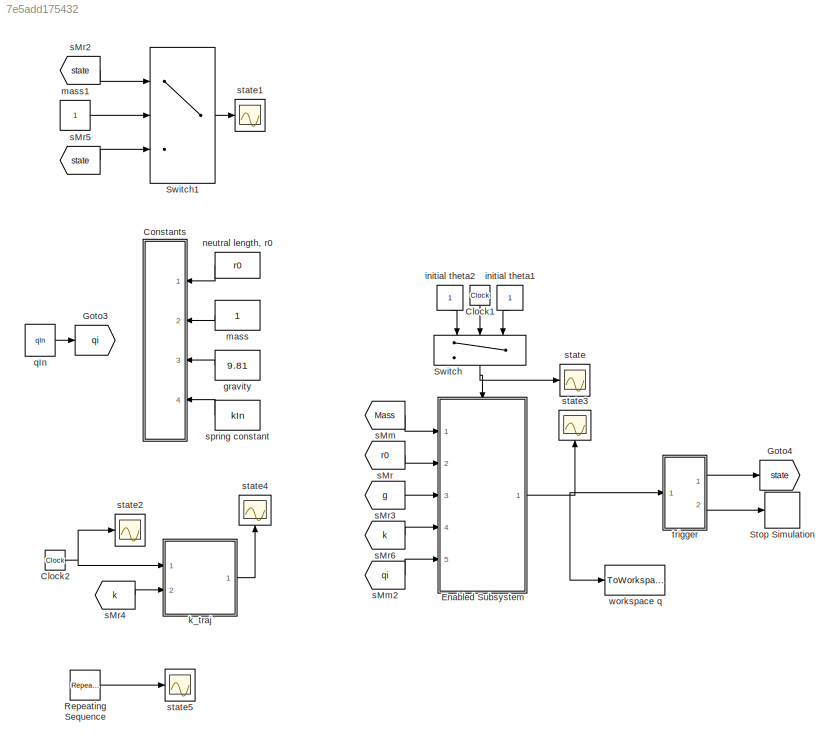
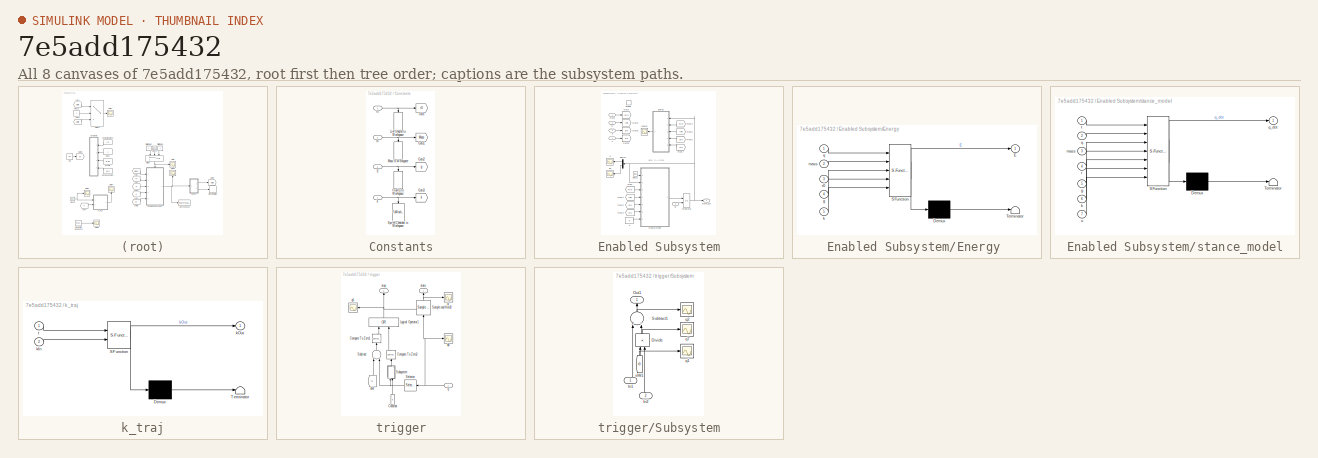
[diagram: thumbnail index - all 8 canvases of the model, root first then tree order]
MODEL slx_7e5add175432
KIND model
CONFIG AbsTol = auto
CONFIG FixedStep = 0.001
CONFIG MaxStep = auto
CONFIG MinStep = auto
CONFIG RelTol = 1e-6
CONFIG SampleTimeConstraint = Unconstrained
CONFIG Solver = ode45
CONFIG SolverMode = Auto
CONFIG SolverName = ode45
CONFIG StartTime = 0.0
CONFIG StopTime = 2
BLOCK [Clock] Clock1
BLOCK [Clock] Clock2
  Commented = on
BLOCK [SubSystem] Constants
  Ports = [4]
  RequestExecContextInheritance = off
BLOCK [Goto] Constants/Goto
  GotoTag = r0
  TagVisibility = global
BLOCK [Goto] Constants/Goto1
  GotoTag = Mass
  TagVisibility = global
BLOCK [Goto] Constants/Goto2
  GotoTag = g
  TagVisibility = global
BLOCK [Goto] Constants/Goto3
  GotoTag = k
  TagVisibility = global
BLOCK [ToWorkspace] Constants/Gravity to Workspace
  MaxDataPoints = 1
  Ports = [1]
  SampleTime = -1
  VariableName = g
BLOCK [ToWorkspace] Constants/Link lengths to Workspace
  MaxDataPoints = 1
  Ports = [1]
  SampleTime = -1
  VariableName = r
BLOCK [ToWorkspace] Constants/Mass to Workspace
  MaxDataPoints = 1
  Ports = [1]
  SampleTime = -1
  VariableName = m
BLOCK [ToWorkspace] Constants/Spring Constant to Workspace
  MaxDataPoints = 1
  Ports = [1]
  SampleTime = -1
  VariableName = k_spring
BLOCK [Inport] Constants/g
  IconDisplay = Port number
  Port = 3
BLOCK [Inport] Constants/k
  IconDisplay = Port number
  Port = 4
BLOCK [Inport] Constants/m
  IconDisplay = Port number
  Port = 2
BLOCK [Inport] Constants/r0
  IconDisplay = Port number
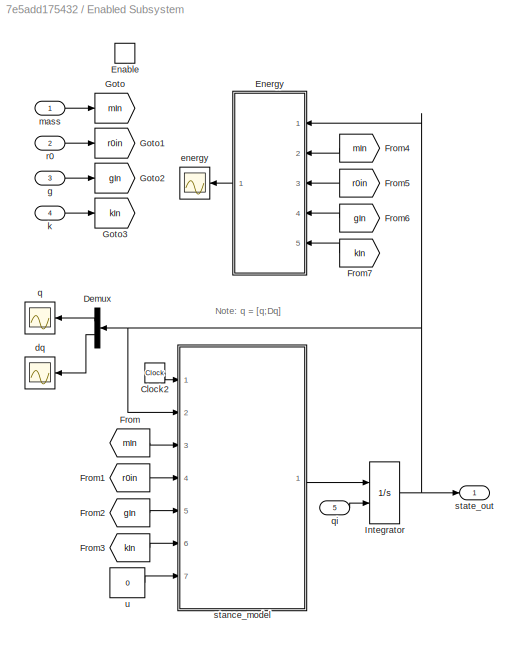
BLOCK [SubSystem] Enabled Subsystem
  Ports = [5, 1, 1]
  RequestExecContextInheritance = off
  TreatAsAtomicUnit = on
BLOCK [Clock] Enabled Subsystem/Clock2
BLOCK [Demux] Enabled Subsystem/Demux
  DisplayOption = bar
  Outputs = 2
  Ports = [1, 2]
BLOCK [EnablePort] Enabled Subsystem/Enable
  Ports = []
BLOCK [SubSystem] Enabled Subsystem/Energy 
  ErrorFcn = Stateflow.Translate.translate
  PermitHierarchicalResolution = ExplicitOnly
  Ports = [5, 1]
  RequestExecContextInheritance = off
  SFBlockType = MATLAB Function
  TreatAsAtomicUnit = on
BLOCK [Demux] Enabled Subsystem/Energy / Demux 
  Outputs = 1
  Ports = [1, 1]
BLOCK [S-Function] Enabled Subsystem/Energy / SFunction 
  EnableBusSupport = on
  FunctionName = sf_sfun
  PortCounts = [5 2]
  Ports = [5, 2]
  Tag = Stateflow S-Function simSLIPModel 1
BLOCK [Terminator] Enabled Subsystem/Energy / Terminator 
BLOCK [Outport] Enabled Subsystem/Energy /E
  IconDisplay = Port number
BLOCK [Inport] Enabled Subsystem/Energy /g
  IconDisplay = Port number
  Port = 4
BLOCK [Inport] Enabled Subsystem/Energy /k
  IconDisplay = Port number
  Port = 5
BLOCK [Inport] Enabled Subsystem/Energy /mass
  IconDisplay = Port number
  Port = 2
BLOCK [Inport] Enabled Subsystem/Energy /q
  IconDisplay = Port number
BLOCK [Inport] Enabled Subsystem/Energy /r0
  IconDisplay = Port number
  Port = 3
BLOCK [From] Enabled Subsystem/From
  GotoTag = mIn
BLOCK [From] Enabled Subsystem/From1
  GotoTag = r0in
BLOCK [From] Enabled Subsystem/From2
  GotoTag = gIn
BLOCK [From] Enabled Subsystem/From3
  GotoTag = kIn
BLOCK [From] Enabled Subsystem/From4
  GotoTag = mIn
BLOCK [From] Enabled Subsystem/From5
  GotoTag = r0in
BLOCK [From] Enabled Subsystem/From6
  GotoTag = gIn
BLOCK [From] Enabled Subsystem/From7
  GotoTag = kIn
BLOCK [Goto] Enabled Subsystem/Goto
  GotoTag = mIn
BLOCK [Goto] Enabled Subsystem/Goto1
  GotoTag = r0in
BLOCK [Goto] Enabled Subsystem/Goto2
  GotoTag = gIn
BLOCK [Goto] Enabled Subsystem/Goto3
  GotoTag = kIn
BLOCK [Integrator] Enabled Subsystem/Integrator
  InitialCondition = [pi/2;1;0;0]
  InitialConditionSource = external
  Ports = [2, 1]
BLOCK [Scope] Enabled Subsystem/dq
  DataFormat = StructureWithTime
  Floating = off
  LimitDataPoints = off
  NumInputPorts = 1
  Ports = [1]
  SampleTime = 0
  SaveName = ScopeData7
BLOCK [Scope] Enabled Subsystem/energy
  DataFormat = StructureWithTime
  Floating = off
  LimitDataPoints = off
  NumInputPorts = 1
  Ports = [1]
  SampleTime = 0
  ZoomMode = xonly
BLOCK [Inport] Enabled Subsystem/g
  IconDisplay = Port number
  Port = 3
BLOCK [Inport] Enabled Subsystem/k
  IconDisplay = Port number
  Port = 4
BLOCK [Inport] Enabled Subsystem/mass
  IconDisplay = Port number
BLOCK [Scope] Enabled Subsystem/q
  DataFormat = StructureWithTime
  Floating = off
  LimitDataPoints = off
  NumInputPorts = 1
  Ports = [1]
  SampleTime = 0
  SaveName = ScopeData6
BLOCK [Inport] Enabled Subsystem/qi
  IconDisplay = Port number
  Port = 5
BLOCK [Inport] Enabled Subsystem/r0
  IconDisplay = Port number
  Port = 2
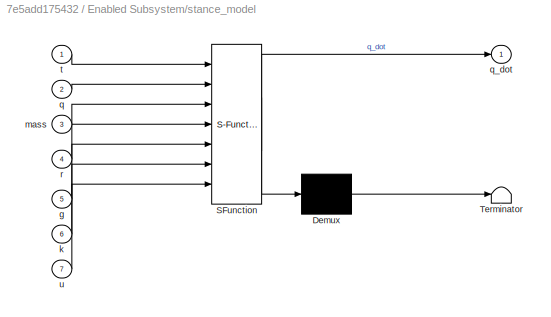
BLOCK [SubSystem] Enabled Subsystem/stance_model
  ErrorFcn = Stateflow.Translate.translate
  PermitHierarchicalResolution = ExplicitOnly
  Ports = [7, 1]
  RequestExecContextInheritance = off
  SFBlockType = MATLAB Function
  TreatAsAtomicUnit = on
BLOCK [Demux] Enabled Subsystem/stance_model/ Demux 
  Outputs = 1
  Ports = [1, 1]
BLOCK [S-Function] Enabled Subsystem/stance_model/ SFunction 
  EnableBusSupport = on
  FunctionName = sf_sfun
  PortCounts = [7 2]
  Ports = [7, 2]
  Tag = Stateflow S-Function simSLIPModel 2
BLOCK [Terminator] Enabled Subsystem/stance_model/ Terminator 
BLOCK [Inport] Enabled Subsystem/stance_model/g
  IconDisplay = Port number
  Port = 5
BLOCK [Inport] Enabled Subsystem/stance_model/k
  IconDisplay = Port number
  Port = 6
BLOCK [Inport] Enabled Subsystem/stance_model/mass
  IconDisplay = Port number
  Port = 3
BLOCK [Inport] Enabled Subsystem/stance_model/q
  IconDisplay = Port number
  Port = 2
BLOCK [Outport] Enabled Subsystem/stance_model/q_dot
  IconDisplay = Port number
BLOCK [Inport] Enabled Subsystem/stance_model/r
  IconDisplay = Port number
  Port = 4
BLOCK [Inport] Enabled Subsystem/stance_model/t
  IconDisplay = Port number
BLOCK [Inport] Enabled Subsystem/stance_model/u
  IconDisplay = Port number
  Port = 7
BLOCK [Outport] Enabled Subsystem/state_out
  IconDisplay = Port number
BLOCK [Constant] Enabled Subsystem/u
  Value = 0
BLOCK [Goto] Goto3
  GotoTag = qi
  TagVisibility = global
BLOCK [Goto] Goto4
  GotoTag = state
  TagVisibility = global
BLOCK [Reference] Repeating Sequence  REF=simulink/Sources/Repeating
Sequence
  Ports = [0, 1]
  SourceBlock = simulink/Sources/Repeating\nSequence
  SourceType = Repeating table
  rep_seq_t = [0 0.05 0.1 0.15 0.32]
  rep_seq_y = [k1 k2 k3 k4 k5]
BLOCK [Stop] Stop Simulation
BLOCK [Switch] Switch
  InputSameDT = off
  SaturateOnIntegerOverflow = off
  Threshold = 0.0001
BLOCK [Switch] Switch1
  InputSameDT = off
  SaturateOnIntegerOverflow = off
BLOCK [Constant] gravity
  Value = 9.81
BLOCK [Constant] initial theta1
BLOCK [Constant] initial theta2
BLOCK [SubSystem] k_traj
  Commented = on
  ErrorFcn = Stateflow.Translate.translate
  PermitHierarchicalResolution = ExplicitOnly
  Ports = [2, 1]
  RequestExecContextInheritance = off
  SFBlockType = MATLAB Function
  TreatAsAtomicUnit = on
BLOCK [Demux] k_traj/ Demux 
  Outputs = 1
  Ports = [1, 1]
BLOCK [S-Function] k_traj/ SFunction 
  EnableBusSupport = on
  FunctionName = sf_sfun
  PortCounts = [2 2]
  Ports = [2, 2]
  Tag = Stateflow S-Function simSLIPModel 3
BLOCK [Terminator] k_traj/ Terminator 
BLOCK [Inport] k_traj/kIn
  IconDisplay = Port number
  Port = 2
BLOCK [Outport] k_traj/kOut
  IconDisplay = Port number
BLOCK [Inport] k_traj/t
  IconDisplay = Port number
BLOCK [Constant] mass
BLOCK [Constant] mass1
BLOCK [Constant] neutral length, r0
  Value = r0
BLOCK [Constant] qIn
  Value = qIn
BLOCK [From] sMm
  GotoTag = Mass
  TagVisibility = global
BLOCK [From] sMm2
  GotoTag = qi
  TagVisibility = global
BLOCK [From] sMr
  GotoTag = r0
  TagVisibility = global
BLOCK [From] sMr2
  GotoTag = state
  TagVisibility = global
BLOCK [From] sMr3
  GotoTag = g
  TagVisibility = global
BLOCK [From] sMr4
  Commented = on
  GotoTag = k
  TagVisibility = global
BLOCK [From] sMr5
  GotoTag = state
  TagVisibility = global
BLOCK [From] sMr6
  GotoTag = k
  TagVisibility = global
BLOCK [Constant] spring constant
  Value = kIn
  VectorParams1D = off
BLOCK [Scope] state
  DataFormat = StructureWithTime
  Floating = off
  LimitDataPoints = off
  NumInputPorts = 1
  Ports = [1]
  SampleTime = 0
  SaveName = ScopeData16
BLOCK [Scope] state1
  DataFormat = StructureWithTime
  Floating = off
  LimitDataPoints = off
  NumInputPorts = 1
  Ports = [1]
  SampleTime = 0
  SaveName = ScopeData3
BLOCK [Scope] state2
  Commented = on
  DataFormat = StructureWithTime
  Floating = off
  LimitDataPoints = off
  NumInputPorts = 1
  Ports = [1]
  SampleTime = 0
  SaveName = ScopeData4
  ZoomMode = xonly
BLOCK [Scope] state3
  DataFormat = StructureWithTime
  Floating = off
  LimitDataPoints = off
  NumInputPorts = 1
  Ports = [1]
  SampleTime = 0
  SaveName = ScopeData15
BLOCK [Scope] state4
  Commented = on
  DataFormat = StructureWithTime
  Floating = off
  LimitDataPoints = off
  NumInputPorts = 1
  Ports = [1]
  SampleTime = 0
  SaveName = ScopeData5
BLOCK [Scope] state5
  DataFormat = StructureWithTime
  Floating = off
  LimitDataPoints = off
  NumInputPorts = 1
  Ports = [1]
  SampleTime = 0
  SaveName = ScopeData12
BLOCK [SubSystem] trigger
  Ports = [1, 2]
  RequestExecContextInheritance = off
BLOCK [Reference] trigger/Compare To Zero1  REF=simulink/Logic and Bit
Operations/Compare
To Zero
  OutDataTypeStr = boolean
  Ports = [1, 1]
  SourceBlock = simulink/Logic and Bit\nOperations/Compare\nTo Zero
  SourceType = Compare To Zero
  ZeroCross = on
  relop = <
BLOCK [Reference] trigger/Compare To Zero2  REF=simulink/Logic and Bit
Operations/Compare
To Zero
  OutDataTypeStr = boolean
  Ports = [1, 1]
  SourceBlock = simulink/Logic and Bit\nOperations/Compare\nTo Zero
  SourceType = Compare To Zero
  ZeroCross = on
  relop = <
BLOCK [Constant] trigger/Constant
  Value = 8
BLOCK [Logic] trigger/Logical Operator1
  AllPortsSameDT = off
  Operator = OR
  OutDataTypeStr = boolean
  Ports = [2, 1]
BLOCK [Reference] trigger/Sample and Hold3  REF=dspsigops/Sample
and Hold
  Ports = [1, 1, 0, 1]
  SourceBlock = dspsigops/Sample\nand Hold
  SourceType = Sample and Hold
  initCond = 0
  latchinput = off
  trig = Rising edge
BLOCK [Selector] trigger/Selector
  IndexOptions = Starting index (dialog)
  Indices = [2]
  InputPortWidth = 4
  Ports = [1, 1]
BLOCK [SubSystem] trigger/Subsystem
  Ports = [2, 1]
  RequestExecContextInheritance = off
BLOCK [Product] trigger/Subsystem/Divide
  InputSameDT = off
  Inputs = */
  OutDataTypeStr = Inherit: Inherit via internal rule
  Ports = [2, 1]
  RndMeth = Floor
  SaturateOnIntegerOverflow = off
BLOCK [Inport] trigger/Subsystem/In1
  IconDisplay = Port number
BLOCK [Inport] trigger/Subsystem/In2
  IconDisplay = Port number
  Port = 2
BLOCK [Outport] trigger/Subsystem/Out1
  IconDisplay = Port number
BLOCK [Sum] trigger/Subsystem/Subtract1
  InputSameDT = off
  Inputs = +-
  OutDataTypeStr = Inherit: Inherit via internal rule
  Ports = [2, 1]
  SaturateOnIntegerOverflow = off
BLOCK [Scope] trigger/Subsystem/q1
  DataFormat = StructureWithTime
  Floating = off
  LimitDataPoints = off
  NumInputPorts = 1
  Ports = [1]
  SampleTime = 0
  SaveName = ScopeData9
BLOCK [Scope] trigger/Subsystem/q2
  DataFormat = StructureWithTime
  Floating = off
  LimitDataPoints = off
  NumInputPorts = 1
  Ports = [1]
  SampleTime = 0
  SaveName = ScopeData10
BLOCK [Scope] trigger/Subsystem/q7
  DataFormat = StructureWithTime
  Floating = off
  LimitDataPoints = off
  NumInputPorts = 1
  Ports = [1]
  SampleTime = 0
  SaveName = ScopeData1
BLOCK [From] trigger/Subsystem/sMr1
  GotoTag = r0
  TagVisibility = global
BLOCK [Sum] trigger/Subtract
  InputSameDT = off
  Inputs = +-
  OutDataTypeStr = Inherit: Inherit via internal rule
  Ports = [2, 1]
  SaturateOnIntegerOverflow = off
BLOCK [Inport] trigger/q
  IconDisplay = Port number
BLOCK [Scope] trigger/q6
  DataFormat = StructureWithTime
  Floating = off
  LimitDataPoints = off
  NumInputPorts = 1
  Ports = [1]
  SampleTime = 0
  SaveName = ScopeData2
BLOCK [Scope] trigger/q7
  DataFormat = StructureWithTime
  Floating = off
  LimitDataPoints = off
  NumInputPorts = 1
  Ports = [1]
  SampleTime = 0
  SaveName = ScopeData8
BLOCK [Scope] trigger/q8
  DataFormat = StructureWithTime
  Floating = off
  LimitDataPoints = off
  NumInputPorts = 1
  Ports = [1]
  SampleTime = 0
  SaveName = ScopeData11
BLOCK [From] trigger/sMr
  GotoTag = r0
  TagVisibility = global
BLOCK [Outport] trigger/state
  IconDisplay = Port number
BLOCK [Outport] trigger/stop
  IconDisplay = Port number
  Port = 2
BLOCK [ToWorkspace] workspace q
  MaxDataPoints = inf
  Ports = [1]
  SampleTime = 0.01
  SaveFormat = Structure With Time
  VariableName = q
ANNOTATION Enabled Subsystem: Note: q = [q;Dq]
LINE Clock1:1 -> Switch:2
NET Clock2:1 -> k_traj:1, state2:1
NET Constants/g:1 -> Constants/Goto2:1, Constants/Gravity to Workspace:1
NET Constants/k:1 -> Constants/Goto3:1, Constants/Spring Constant to Workspace:1
NET Constants/m:1 -> Constants/Goto1:1, Constants/Mass to Workspace:1
NET Constants/r0:1 -> Constants/Goto:1, Constants/Link lengths to Workspace:1
LINE Enabled Subsystem/Clock2:1 -> Enabled Subsystem/stance_model:1
LINE Enabled Subsystem/Demux:1 -> Enabled Subsystem/q:1
LINE Enabled Subsystem/Demux:2 -> Enabled Subsystem/dq:1
LINE Enabled Subsystem/Energy :1 -> Enabled Subsystem/energy:1
LINE Enabled Subsystem/From1:1 -> Enabled Subsystem/stance_model:4
LINE Enabled Subsystem/From2:1 -> Enabled Subsystem/stance_model:5
LINE Enabled Subsystem/From3:1 -> Enabled Subsystem/stance_model:6
LINE Enabled Subsystem/From4:1 -> Enabled Subsystem/Energy :2
LINE Enabled Subsystem/From5:1 -> Enabled Subsystem/Energy :3
LINE Enabled Subsystem/From6:1 -> Enabled Subsystem/Energy :4
LINE Enabled Subsystem/From7:1 -> Enabled Subsystem/Energy :5
LINE Enabled Subsystem/From:1 -> Enabled Subsystem/stance_model:3
NET Enabled Subsystem/Integrator:1 -> Enabled Subsystem/Demux:1, Enabled Subsystem/Energy :1, Enabled Subsystem/stance_model:2, Enabled Subsystem/state_out:1
LINE Enabled Subsystem/g:1 -> Enabled Subsystem/Goto2:1
LINE Enabled Subsystem/k:1 -> Enabled Subsystem/Goto3:1
LINE Enabled Subsystem/mass:1 -> Enabled Subsystem/Goto:1
LINE Enabled Subsystem/qi:1 -> Enabled Subsystem/Integrator:2
LINE Enabled Subsystem/r0:1 -> Enabled Subsystem/Goto1:1
LINE Enabled Subsystem/stance_model:1 -> Enabled Subsystem/Integrator:1
LINE Enabled Subsystem/u:1 -> Enabled Subsystem/stance_model:7
NET Enabled Subsystem:1 -> state3:1, trigger:1, workspace q:1
LINE Repeating Sequence:1 -> state5:1
LINE Switch1:1 -> state1:1
NET Switch:1 -> Enabled Subsystem:enable, state:1
LINE gravity:1 -> Constants:3
LINE initial theta1:1 -> Switch:3
LINE initial theta2:1 -> Switch:1
LINE k_traj:1 -> state4:1
LINE mass1:1 -> Switch1:2
LINE mass:1 -> Constants:2
LINE neutral length, r0:1 -> Constants:1
LINE qIn:1 -> Goto3:1
LINE sMm2:1 -> Enabled Subsystem:5
LINE sMm:1 -> Enabled Subsystem:1
LINE sMr2:1 -> Switch1:1
LINE sMr3:1 -> Enabled Subsystem:3
LINE sMr4:1 -> k_traj:2
LINE sMr5:1 -> Switch1:3
LINE sMr6:1 -> Enabled Subsystem:4
LINE sMr:1 -> Enabled Subsystem:2
LINE spring constant:1 -> Constants:4
LINE trigger/Compare To Zero1:1 -> trigger/Logical Operator1:1
LINE trigger/Compare To Zero2:1 -> trigger/Logical Operator1:2
LINE trigger/Constant:1 -> trigger/Subsystem:2
NET trigger/Logical Operator1:1 -> trigger/Sample and Hold3:trigger, trigger/q6:1, trigger/stop:1
NET trigger/Sample and Hold3:1 -> trigger/q7:1, trigger/state:1
NET trigger/Selector:1 -> trigger/Subsystem:1, trigger/Subtract:2
NET trigger/Subsystem/Divide:1 -> trigger/Subsystem/Subtract1:2, trigger/Subsystem/q7:1
LINE trigger/Subsystem/In1:1 -> trigger/Subsystem/Subtract1:1
LINE trigger/Subsystem/In2:1 -> trigger/Subsystem/Divide:2
NET trigger/Subsystem/Subtract1:1 -> trigger/Subsystem/Out1:1, trigger/Subsystem/q2:1
NET trigger/Subsystem/sMr1:1 -> trigger/Subsystem/Divide:1, trigger/Subsystem/q1:1
LINE trigger/Subsystem:1 -> trigger/Compare To Zero2:1
LINE trigger/Subtract:1 -> trigger/Compare To Zero1:1
NET trigger/q:1 -> trigger/Sample and Hold3:1, trigger/Selector:1, trigger/q8:1
LINE trigger/sMr:1 -> trigger/Subtract:1
LINE trigger:1 -> Goto4:1
LINE trigger:2 -> Stop Simulation:1
note: NET lines group one-source signal fan-out (src -> all destinations, sorted); 1:1 wires keep LINE
CHART Enabled
Subsystem/Energy  states=1 transitions=1
  STATE_LABEL 'eML_blk_kernel()'
  STATE_LABEL 'SCRIPT:\nfunction E = findEnergy(q,mass,r0,g,k)\n%#codegen\n\n    E = getEnergy(q,mass,r0,g,k);\nend'
CHART Enabled
Subsystem/stance_model states=1 transitions=1
  STATE_LABEL 'eML_blk_kernel()'
  STATE_LABEL 'SCRIPT:\nfunction q_dot  = simulinkModel(t,q,mass,r,g,k,u)\n    %double_pen2 returns D2angle of the double pendulum with uniform mass\n    %   Detailed explanation goes here\n    n = size(q);\n    n = n(1)/2;\n    q_dot = zeros(2*n,1);\n    q_dot(1:n) = q(n+1:2*n);\n    q_dot(n+1:2*n) = ddq_func(q,mass,r,g,k,u);\nend'
CHART k_traj states=1 transitions=1
  STATE_LABEL 'eML_blk_kernel()'
  STATE_LABEL 'SCRIPT:\nfunction kOut = kTraj(t,kIn)\n%#codegen\ntTot = 5;\ndiv = size(kIn,1)-1;\nfrac = t*(div/tTot);\ni = floor(frac)+1;\ni = min(i,div);\nkOut = kIn(i)+(kIn(i+1)-kIn(i))*(frac+1-i);%[i;frac]; '
